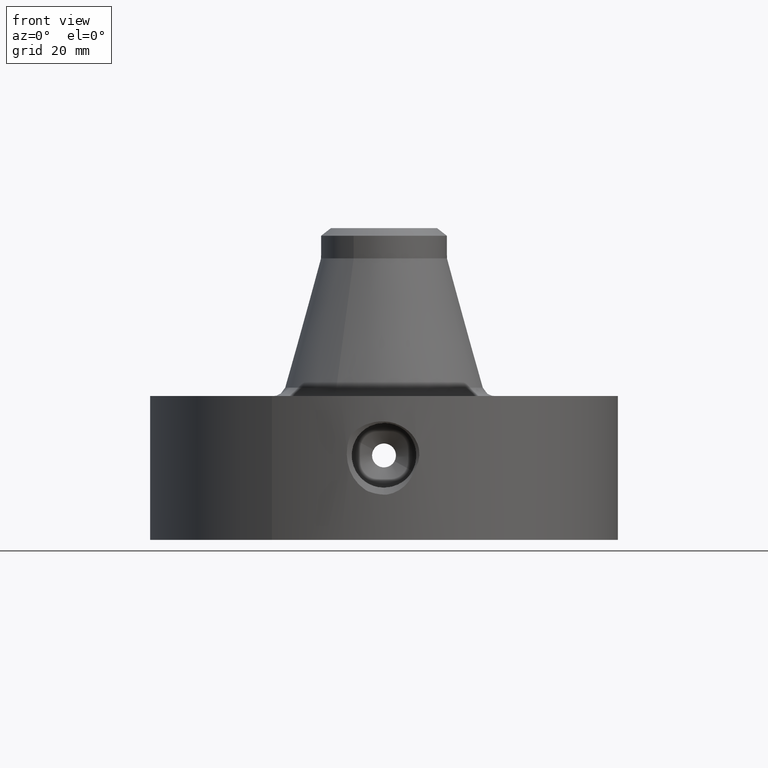
[diagram: clean part render]
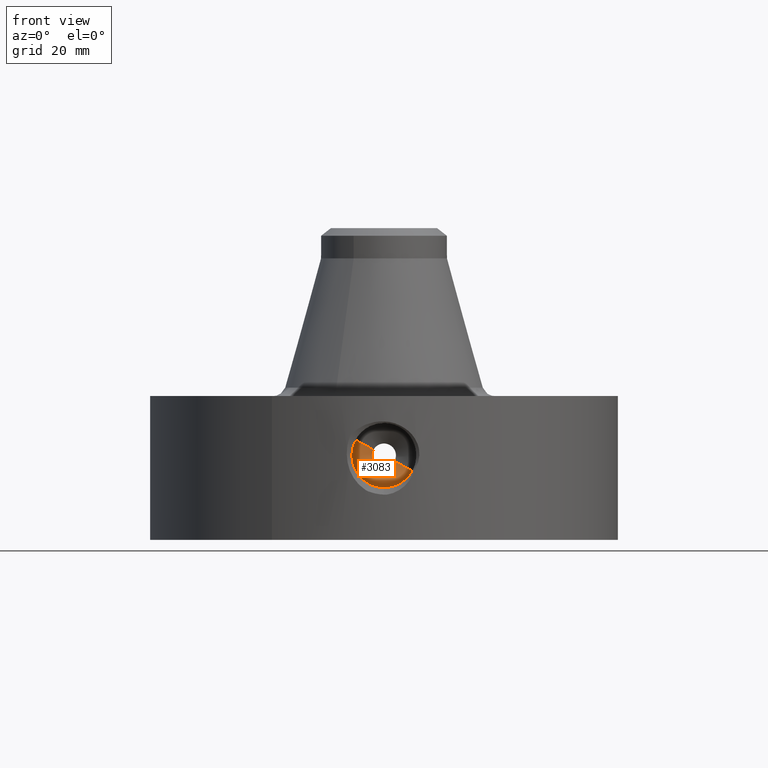
[diagram: same view with one face highlighted and labeled with its STEP entity id]
A machine part, front view. The second image highlights one B-rep face of the part: STEP entity #3083.
In plain terms, the highlighted conical surface has half-angle 60 deg.
Its self-contained STEP definition (entity closure, byte-faithful):
#2205=AXIS2_PLACEMENT_3D('Circle Axis2P3D',#2203,#2204,$) ;
#3044=AXIS2_PLACEMENT_3D('Cone Axis2P3D',#3041,#3042,#3043) ;
#3074=AXIS2_PLACEMENT_3D('Circle Axis2P3D',#3072,#3073,$) ;
#2181=CARTESIAN_POINT('Vertex',(0.109697820237,-1.44321662097,0.880071807678)) ;
#2188=CARTESIAN_POINT('Vertex',(-0.109697820237,-1.44321662097,0.99992819233)) ;
#2203=CARTESIAN_POINT('Axis2P3D Location',(-9.66350983644E-017,-1.44321662097,0.940000000004)) ;
#3041=CARTESIAN_POINT('Axis2P3D Location',(-9.66350983644E-017,-1.44321662097,0.940000000004)) ;
#3046=CARTESIAN_POINT('Line Origine',(0.202254259083,-1.50410831049,0.829507994685)) ;
#3050=CARTESIAN_POINT('Vertex',(0.29481069793,-1.56500000001,0.778944181692)) ;
#3057=CARTESIAN_POINT('Vertex',(-0.29481069793,-1.56500000001,1.10105581832)) ;
#3060=CARTESIAN_POINT('Line Origine',(-0.202254259083,-1.50410831049,1.05049200532)) ;
#3072=CARTESIAN_POINT('Axis2P3D Location',(-1.19006342162E-016,-1.56500000001,0.940000000004)) ;
#2204=DIRECTION('Axis2P3D Direction',(7.2321661367E-018,0.0393700787402,0.)) ;
#3042=DIRECTION('Axis2P3D Direction',(-7.2321661367E-018,-0.0393700787402,0.)) ;
#3043=DIRECTION('Axis2P3D XDirection',(-0.0345504945626,4.23385151202E-018,0.0188750212049)) ;
#3047=DIRECTION('Vector Direction',(0.0299216060045,-0.0196850393701,-0.0163462478604)) ;
#3061=DIRECTION('Vector Direction',(-0.0299216060045,-0.0196850393701,0.0163462478604)) ;
#3073=DIRECTION('Axis2P3D Direction',(-7.2321661367E-018,-0.0393700787402,0.)) ;
#3048=VECTOR('Line Direction',#3047,0.0393700787402) ;
#3062=VECTOR('Line Direction',#3061,0.0393700787402) ;
#3078=ORIENTED_EDGE('',*,*,#3064,.T.) ;
#3079=ORIENTED_EDGE('',*,*,#3076,.F.) ;
#3080=ORIENTED_EDGE('',*,*,#3052,.F.) ;
#3081=ORIENTED_EDGE('',*,*,#2207,.T.) ;
#3083=ADVANCED_FACE('PartBody',(#3082),#3045,.F.) ;
#2206=CIRCLE('generated circle',#2205,0.125000000001) ;
#3075=CIRCLE('generated circle',#3074,0.335935000001) ;
#3045=CONICAL_SURFACE('Cone',#3044,0.125,1.0471975512) ;
#2207=EDGE_CURVE('',#2182,#2189,#2206,.T.) ;
#3052=EDGE_CURVE('',#2182,#3051,#3049,.T.) ;
#3064=EDGE_CURVE('',#2189,#3058,#3063,.T.) ;
#3076=EDGE_CURVE('',#3051,#3058,#3075,.F.) ;
#3077=EDGE_LOOP('',(#3078,#3079,#3080,#3081)) ;
#3082=FACE_OUTER_BOUND('',#3077,.T.) ;
#3049=LINE('Line',#3046,#3048) ;
#3063=LINE('Line',#3060,#3062) ;
#2182=VERTEX_POINT('',#2181) ;
#2189=VERTEX_POINT('',#2188) ;
#3051=VERTEX_POINT('',#3050) ;
#3058=VERTEX_POINT('',#3057) ;